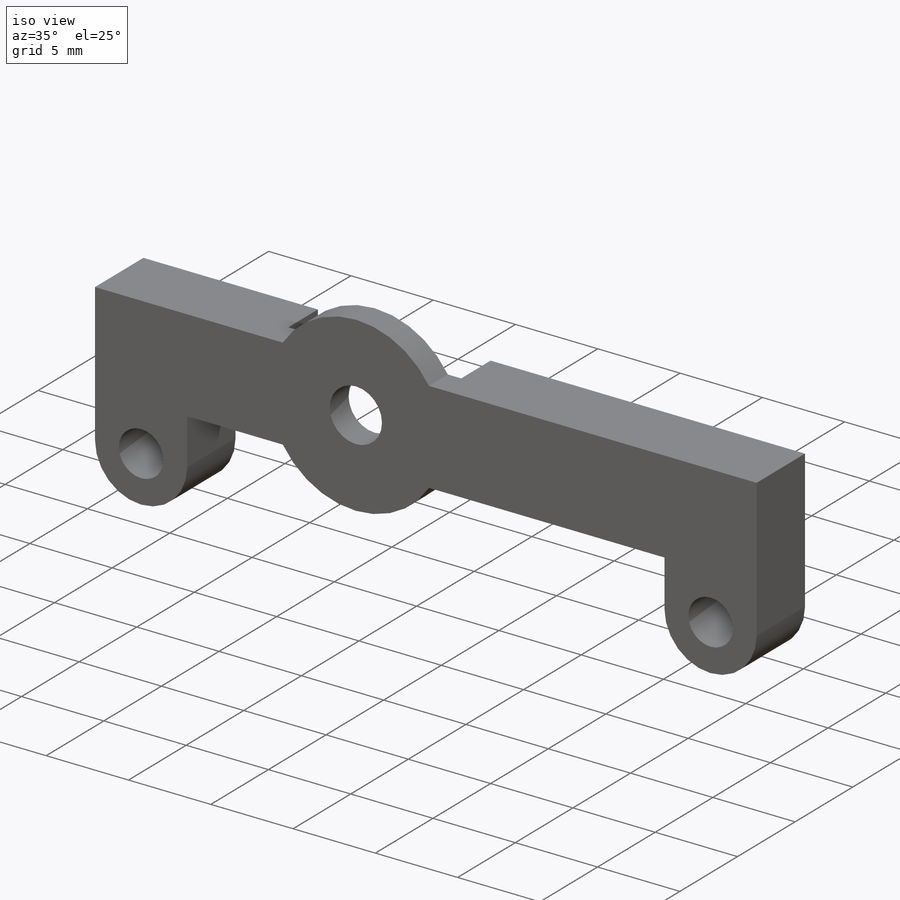
[diagram: iso view]
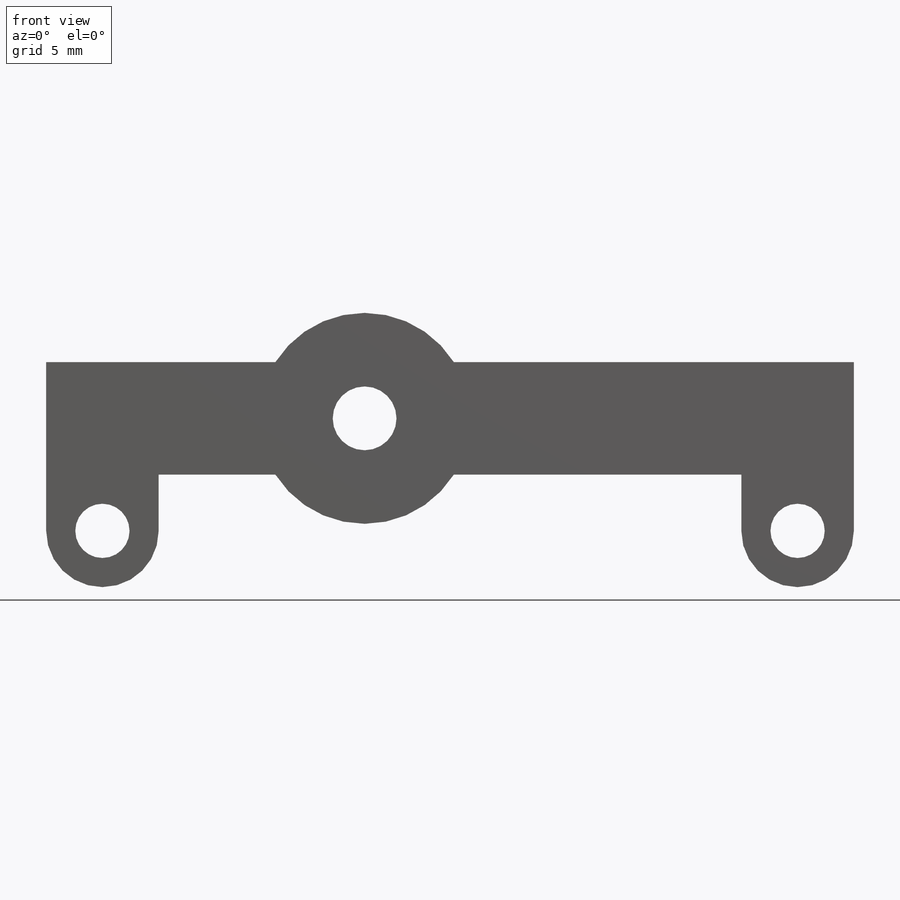
[diagram: front view]
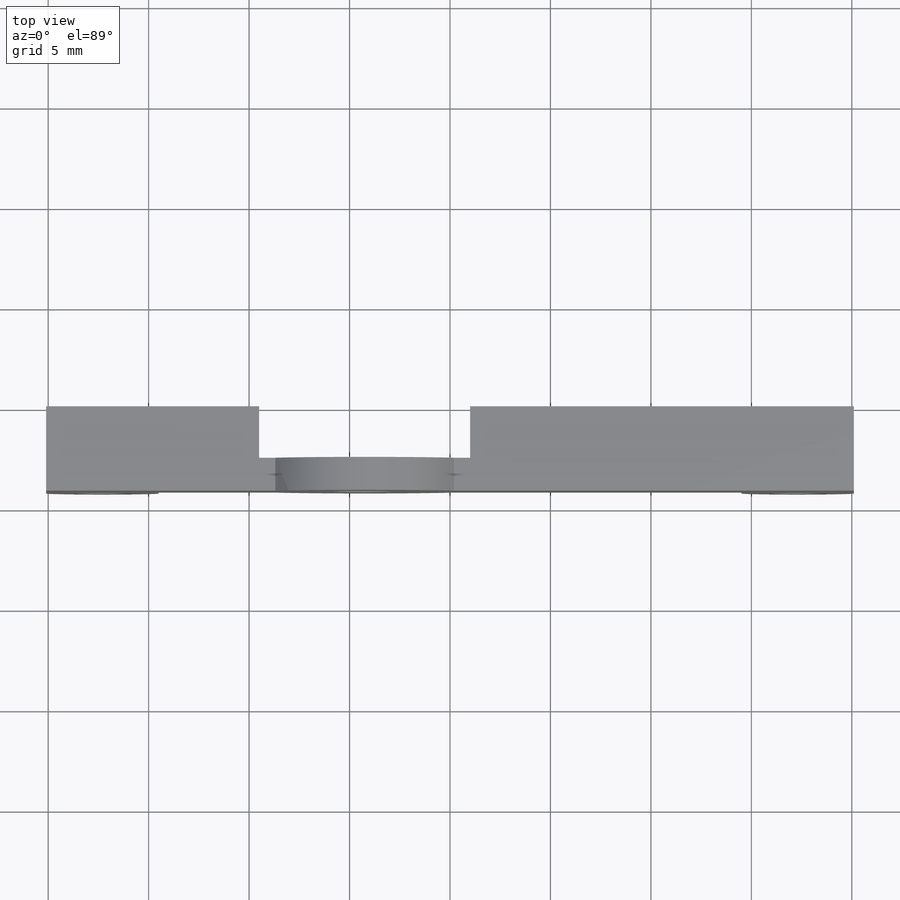
[diagram: top view]
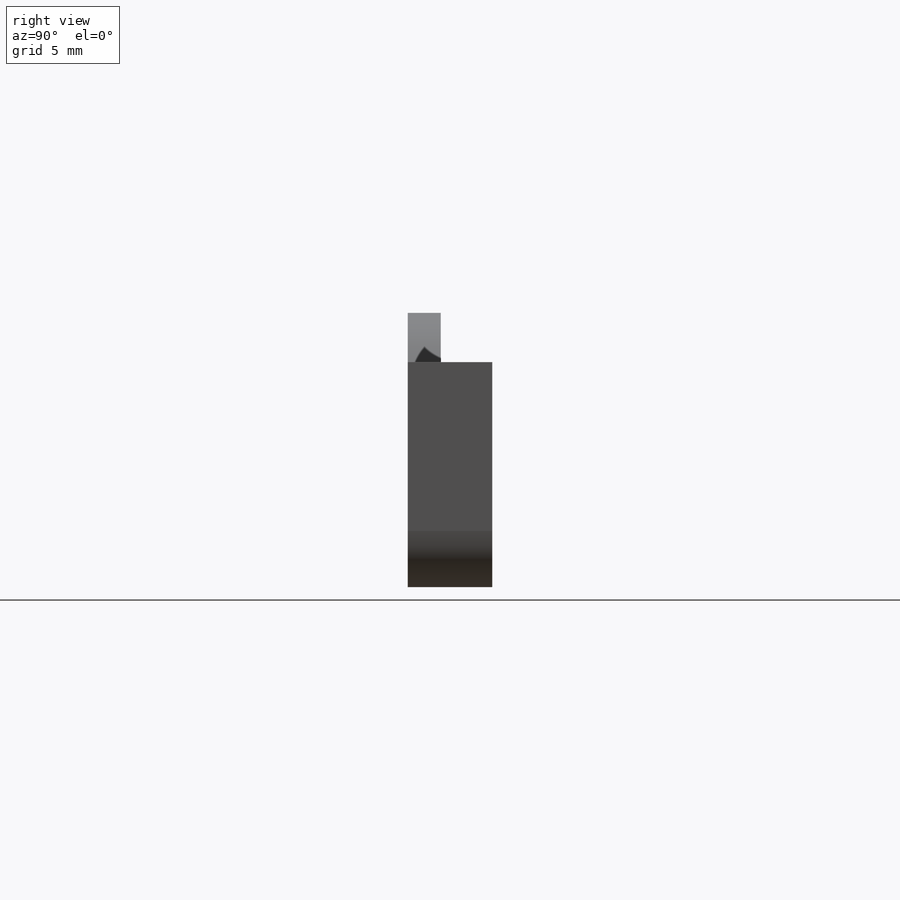
[diagram: right view]
SOLIDWORKS PART (.sldprt)
format: sldprt  version: not decoded by parser v0  size: 200,192 bytes
history: native  units: mm
features: sketch x3, extrude x2, material x1, cut_extrude x1 + 1 further entry (+18 scaffold rows collapsed; 3 parser-record rows omitted)
feature tree (29):
  scaffold x18  (default folders/planes/origin — collapsed)
  material  "ABS"
  "params_print"
  parser-record x3  (decoder bookkeeping rows leaked as tree rows — omitted from the tree; the rows remain in map.json)
  sketch  "Sketch1"  dims[c1.D4=2.7mm c1.D5=3.25mm c1.D6=2.8mm c1.D7=3.175mm c1.D1=17.3mm c1.D2=5.6mm c1.D3=4.25mm c2.D5=2.8mm c2.D7=~4.475584mm]
  extrude  "Body"  Depth=4.2mm
  sketch  "Sketch2"  dims[D1=5.25mm]
  cut_extrude  "Pulley Clearance"  Depth=2.56mm
  sketch  "Sketch3"  dims[D1=10.5mm]
  extrude  "Pulley Block"  [1 undecoded]
decode coverage: 5 of 6 modeling features carry decoded parameters; 1 rows unclassified (native names shown)
note: ~ marks probable driven/reference dimensions
note: 1 parameter value undecoded
note: suppression state not decoded; provenance and decode notes live in map.json
